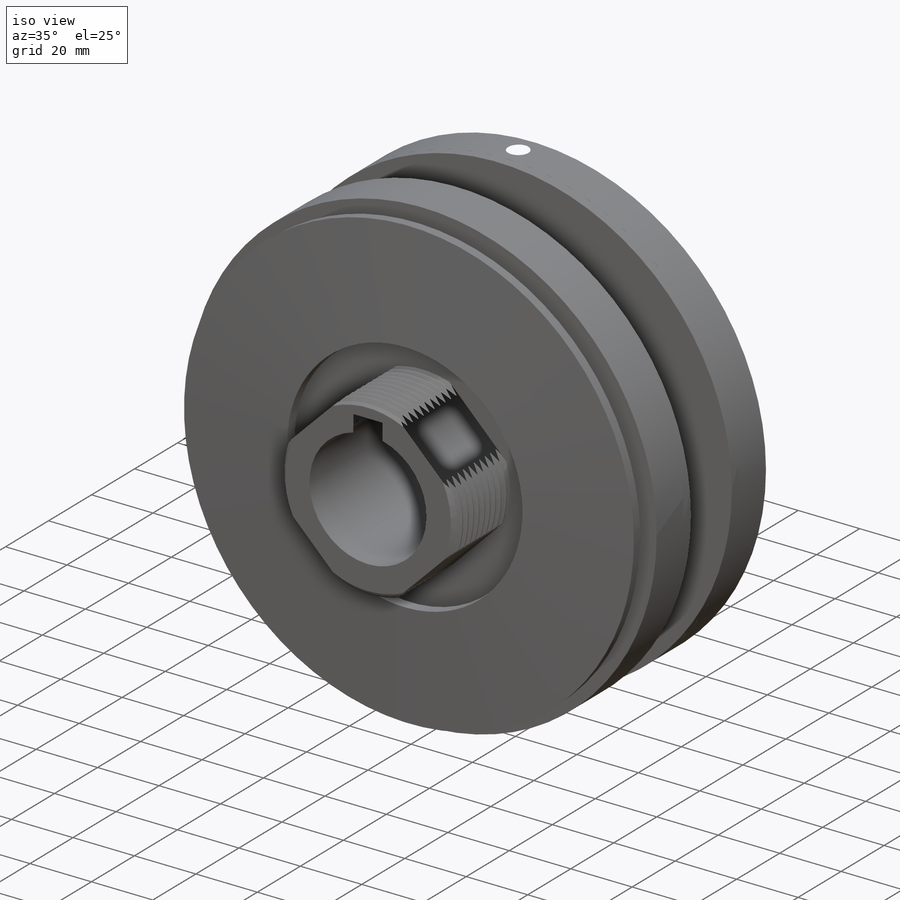
[diagram: iso view]
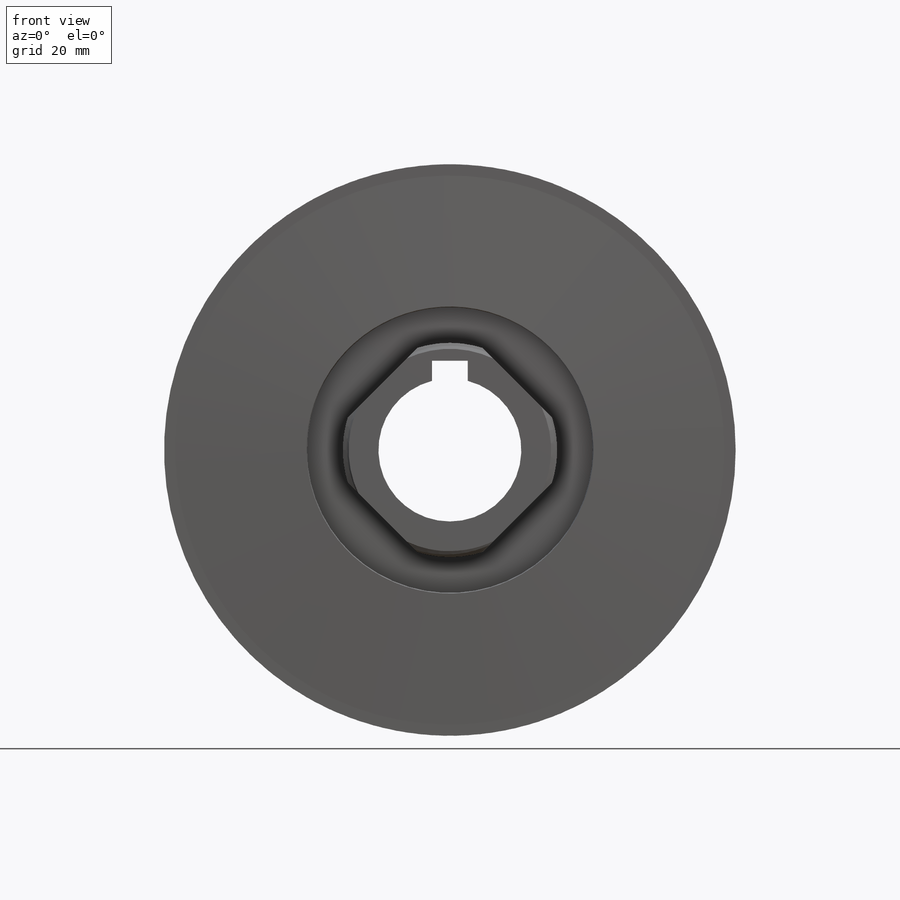
[diagram: front view]
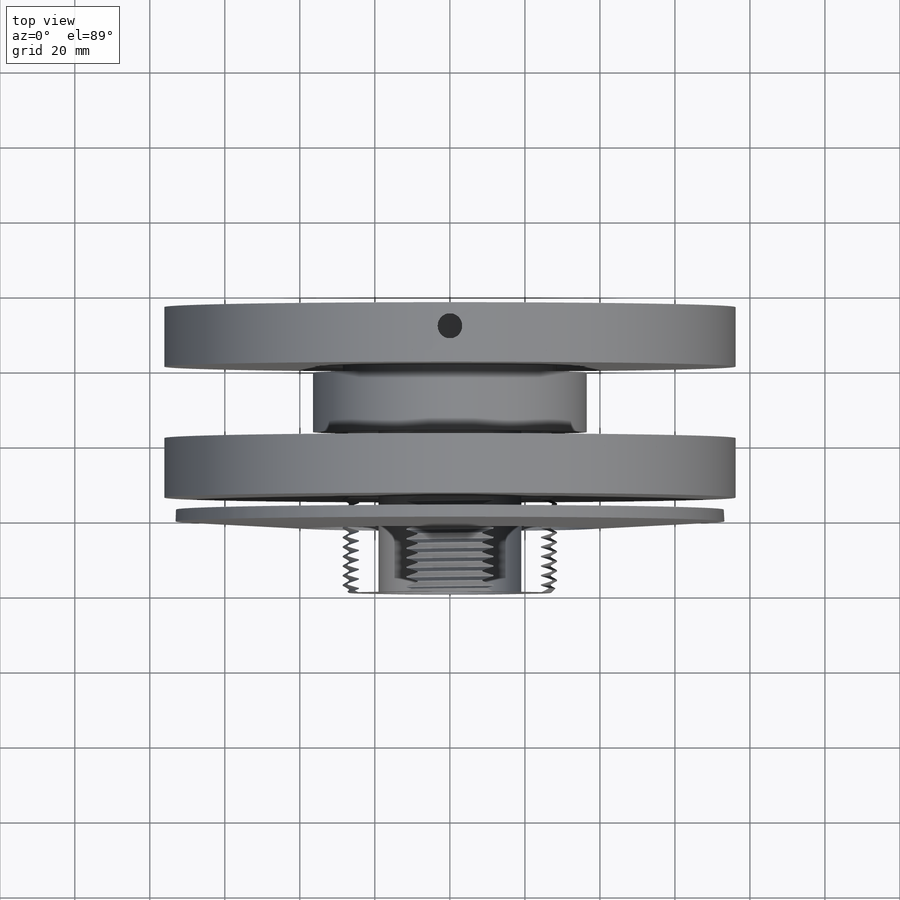
[diagram: top view]
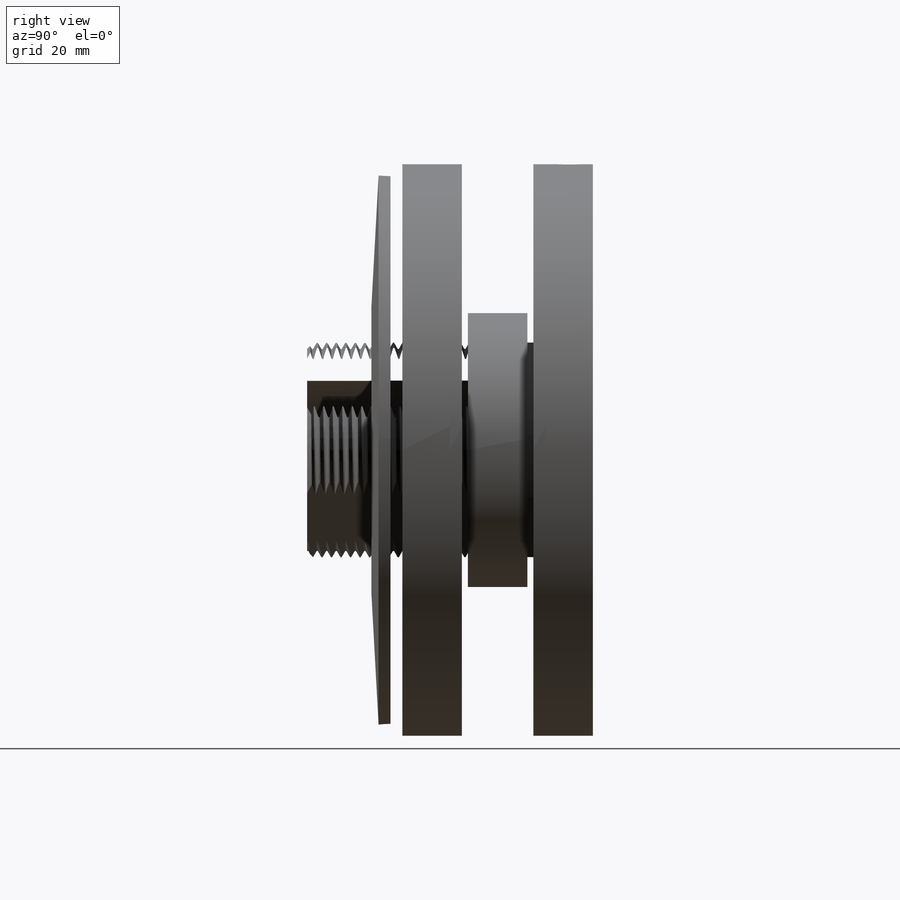
[diagram: right view]
SOLIDWORKS PART (.sldprt)
format: sldprt  version: not decoded by parser v0  size: 1,273,856 bytes
history: native  units: mm
features: sketch x23, cut_extrude x9, revolve x8, plane x2, extrude x2, material x1, helix x1, chamfer x1, sweep x1, cut_revolve x1, pattern_circular x1 + 2 further entries (+14 scaffold rows collapsed)
feature tree (66):
  scaffold x14  (default folders/planes/origin — collapsed)
  material  "Material <not specified>"
  "Design Table"
  "Design Table"
  sketch  "Sketch1"  dims[c1.A=9.525mm c1.B=34.925mm c2.A=35.2044mm c2.E=17.4625mm c2.F=~22.540686mm c2.G=~23.24135mm c3.G=3.175mm c3.F=14.2875mm c3.B=22.225mm c3.D1=26.9875mm c4.D1=~1.783333deg c4.D2=304.8mm c4.D3=9.525mm c5.D1=26.9875mm c6.D1=~1.789911deg c6.D2=3.175mm c6.D3=~0.79375mm c6.Bore=38.1mm c6.D4=0.508mm c6.D5=~7.794887mm c7.D5=45.0deg c7.D6=0.508mm c7.D7=~10.661771mm c8.D7=45.0deg c8.Run=304.8mm c8.Rise=19.05mm c9.Run=14.2875mm c9.Rise=~0.694531mm c10.Run=22.225mm c10.D=~33.734375mm c10.D1=22.225mm c11.D1=8.0deg c12.D1=22.225mm c13.D1=8.0deg c13.A=152.4mm c13.E=76.2mm c13.D=19.05mm c13.B=31.75mm c13.C=12.7mm c14.D1=3.175mm c14.D2=3.175mm c14.D3=12.7mm c14.B=31.75mm c15.B=73.025mm c15.X=25.4mm c15.Thread OD=57.15mm c15.Nut Lg.=19.05mm c15.Nut Hex=76.2mm c15.D4=1.27mm c15.Washer OD=146.05mm]
  sketch  "Sketch0"
  revolve  "Revolve1"  Angle=360deg
  sketch  "Sketch2"
  helix  "Helix/Spiral1"  Pitch=47.625mm
  chamfer  "Chamfer1"  Distance=1.5875mm Angle=45deg
  sketch  "Sketch3"  dims[D1=2.54mm D2=0.3175mm]
  sweep  "Cut-Sweep1"
  sketch  "Sketch4"  dims[Flats=50.8mm D1=~55.464654mm]
  cut_extrude  "Cut-Extrude1"  Depth=47.625mm
  sketch  "Sketch5"  dims[Key Wd.=9.525mm Key Dp.=4.7625mm D1=4.7625mm]
  cut_extrude  "Cut-Extrude2"  [1 undecoded]
  plane  "Plane1"
  sketch  "Sketch6"  dims[c1.Screw Size=6.35mm c1.Pitch=~0.824889mm c2.Pitch=1.27mm c2.D1=0.3175mm]
  cut_extrude  "Cut-Extrude3"  [1 undecoded]
  sketch  "Sketch7"  dims[D1=~0.15875mm]
  cut_extrude  "Cut-Extrude4"  [1 undecoded]
  sketch  "Sketch8"  dims[Set Screw Lg.=12.7mm]
  revolve  "Revolve2"  Angle=360deg
  sketch  "Sketch9"  dims[Set Screw Hex=3.175mm]
  cut_extrude  "Cut-Extrude5"  Depth=1.984375mm
  sketch  "Sketch10"
  cut_extrude  "Cut-Extrude6"  [1 undecoded]
  sketch  "Sketch11"  dims[Bearing Wd.=15.875mm]
  revolve  "Revolve3"  Angle=360deg
  sketch  "Sketch12"  dims[D1=0.254mm]
  revolve  "Revolve4"  Angle=360deg
  sketch  "Sketch13"  dims[D1=0.0mm]
  extrude  "Boss-Extrude1"  [1 undecoded]
  sketch  "Sketch14"
  revolve  "Revolve5"  Angle=360deg
  sketch  "Sketch15"  dims[D1=31.75mm]
  extrude  "Boss-Extrude2"  [1 undecoded]
  sketch  "Sketch16"  dims[c1.D1=3.175mm c1.D2=~2.843452mm c2.D2=60.0deg]
  cut_revolve  "Cut-Revolve1"  Angle=360deg
  sketch  "Sketch17"  dims[c1.D1=50.8mm c2.D1=60.0deg c2.Washer Wd.=3.175mm]
  revolve  "Revolve6"  Angle=360deg
  revolve  "Revolve6.1"  [1 undecoded]
  sketch  "Sketch17<3>"  dims[D1=360.0deg]
  sketch  "Sketch18"  dims[Screw Size=6.35mm Pitch=1.27mm D1=0.3175mm]
  cut_extrude  "Cut-Extrude7"  [1 undecoded]
  plane  "Plane2"
  sketch  "Sketch19"  dims[Set Screw Lg.=12.7mm D1=3.175mm]
  revolve  "Revolve7"  Angle=360deg
  sketch  "Sketch20"  dims[Set Screw Hex=3.175mm]
  cut_extrude  "Cut-Extrude8"  Depth=3.175mm
  sketch  "Sketch21"
  cut_extrude  "Cut-Extrude9"  [1 undecoded]
  pattern_circular  "CirPattern1"  Count=2 Angle=60deg
decode coverage: 32 of 47 modeling features carry decoded parameters; 2 rows unclassified (native names shown)
note: ~ marks probable driven/reference dimensions
note: 9 parameter values undecoded
summary: no parameter record found for 9 features
note: suppression state not decoded; provenance and decode notes live in map.json
